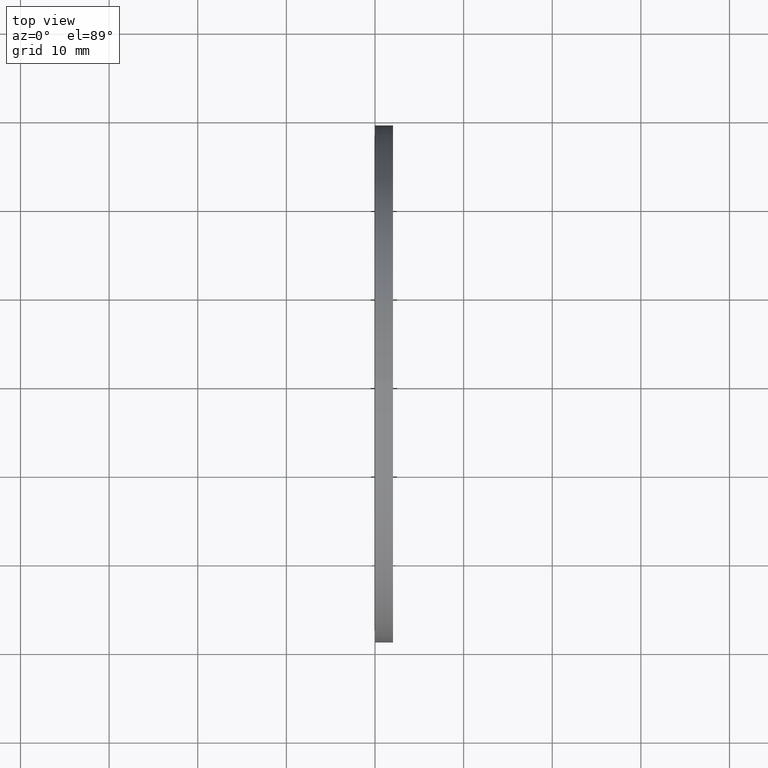
[diagram: clean part render]
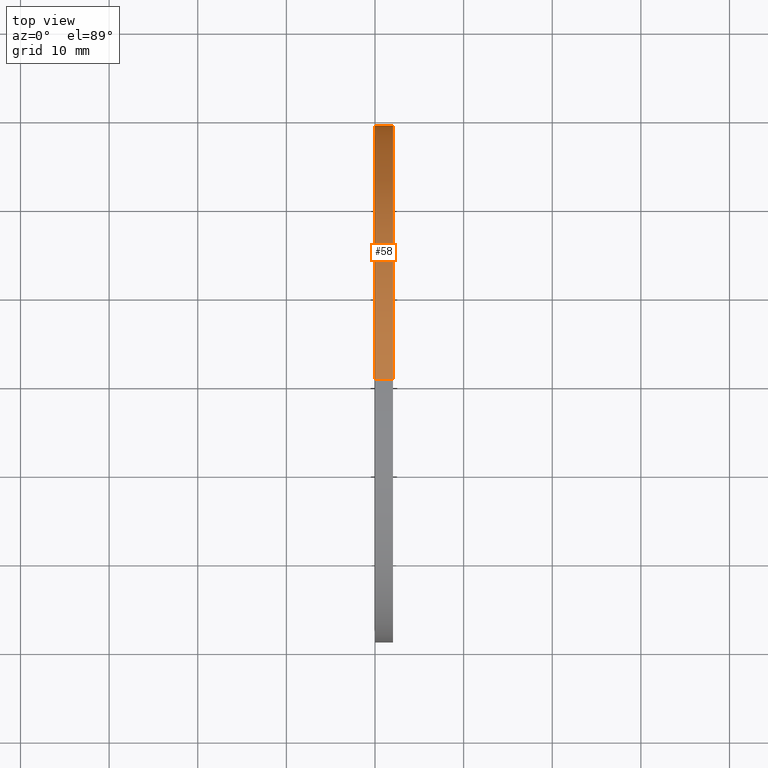
[diagram: same view with one face highlighted and labeled with its STEP entity id]
A machine part, top view. The second image highlights one B-rep face of the part: STEP entity #58.
In plain terms, the highlighted cylindrical surface (partial cylindrical patch) has radius 29.21 mm, axis along (-1, 0, 0).
Its self-contained STEP definition (entity closure, byte-faithful):
#23 = ORIENTED_EDGE ( 'NONE', *, *, #24, .F. ) ;
#24 = EDGE_CURVE ( 'NONE', #36, #43, #76, .T. ) ;
#33 = EDGE_LOOP ( 'NONE', ( #34, #38, #41, #23 ) ) ;
#34 = ORIENTED_EDGE ( 'NONE', *, *, #35, .T. ) ;
#35 = EDGE_CURVE ( 'NONE', #36, #37, #190, .T. ) ;
#36 = VERTEX_POINT ( 'NONE', #227 ) ;
#37 = VERTEX_POINT ( 'NONE', #226 ) ;
#38 = ORIENTED_EDGE ( 'NONE', *, *, #39, .T. ) ;
#39 = EDGE_CURVE ( 'NONE', #37, #40, #225, .T. ) ;
#40 = VERTEX_POINT ( 'NONE', #206 ) ;
#41 = ORIENTED_EDGE ( 'NONE', *, *, #42, .F. ) ;
#42 = EDGE_CURVE ( 'NONE', #43, #40, #252, .T. ) ;
#43 = VERTEX_POINT ( 'NONE', #145 ) ;
#58 = ADVANCED_FACE ( 'NONE', ( #224 ), #188, .T. ) ;
#73 = DIRECTION ( 'NONE',  ( -1.000000000000000000, 0.0000000000000000000, 0.0000000000000000000 ) ) ;
#74 = VECTOR ( 'NONE', #73, 39.37007874015748100 ) ;
#75 = CARTESIAN_POINT ( 'NONE',  ( -1.721125226614714300, 0.0000000000000000000, 1.149999999999999900 ) ) ;
#76 = LINE ( 'NONE', #75, #74 ) ;
#145 = CARTESIAN_POINT ( 'NONE',  ( 0.0000000000000000000, 0.0000000000000000000, 1.149999999999999900 ) ) ;
#146 = DIRECTION ( 'NONE',  ( 0.0000000000000000000, 0.0000000000000000000, 1.000000000000000000 ) ) ;
#184 = DIRECTION ( 'NONE',  ( 0.0000000000000000000, 0.0000000000000000000, 1.000000000000000000 ) ) ;
#185 = DIRECTION ( 'NONE',  ( -1.000000000000000000, 0.0000000000000000000, 0.0000000000000000000 ) ) ;
#186 = CARTESIAN_POINT ( 'NONE',  ( -1.721125226614714300, 0.0000000000000000000, 0.0000000000000000000 ) ) ;
#187 = AXIS2_PLACEMENT_3D ( 'NONE', #186, #185, #184 ) ;
#188 = CYLINDRICAL_SURFACE ( 'NONE', #187, 1.149999999999999900 ) ;
#189 = AXIS2_PLACEMENT_3D ( 'NONE', #230, #229, #228 ) ;
#190 = CIRCLE ( 'NONE', #189, 1.149999999999999900 ) ;
#206 = CARTESIAN_POINT ( 'NONE',  ( 0.0000000000000000000, 1.408343819019456000E-016, -1.149999999999999900 ) ) ;
#207 = DIRECTION ( 'NONE',  ( -1.000000000000000000, 0.0000000000000000000, 0.0000000000000000000 ) ) ;
#208 = VECTOR ( 'NONE', #207, 39.37007874015748100 ) ;
#209 = CARTESIAN_POINT ( 'NONE',  ( -1.721125226614714300, 1.408343819019456000E-016, -1.149999999999999900 ) ) ;
#224 = FACE_OUTER_BOUND ( 'NONE', #33, .T. ) ;
#225 = LINE ( 'NONE', #209, #208 ) ;
#226 = CARTESIAN_POINT ( 'NONE',  ( 0.07999999999999996000, 1.408343819019456000E-016, -1.149999999999999900 ) ) ;
#227 = CARTESIAN_POINT ( 'NONE',  ( 0.07999999999999996000, 0.0000000000000000000, 1.149999999999999900 ) ) ;
#228 = DIRECTION ( 'NONE',  ( 0.0000000000000000000, 0.0000000000000000000, 1.000000000000000000 ) ) ;
#229 = DIRECTION ( 'NONE',  ( -1.000000000000000000, 0.0000000000000000000, 0.0000000000000000000 ) ) ;
#230 = CARTESIAN_POINT ( 'NONE',  ( 0.07999999999999996000, 0.0000000000000000000, 0.0000000000000000000 ) ) ;
#249 = DIRECTION ( 'NONE',  ( -1.000000000000000000, 0.0000000000000000000, 0.0000000000000000000 ) ) ;
#250 = CARTESIAN_POINT ( 'NONE',  ( 0.0000000000000000000, 0.0000000000000000000, 0.0000000000000000000 ) ) ;
#251 = AXIS2_PLACEMENT_3D ( 'NONE', #250, #249, #146 ) ;
#252 = CIRCLE ( 'NONE', #251, 1.149999999999999900 ) ;